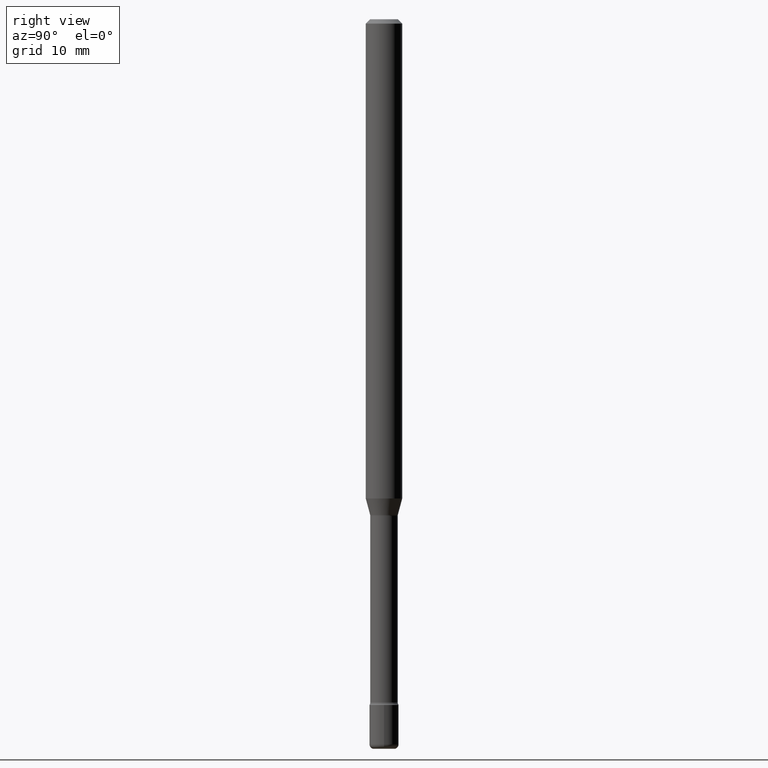
[diagram: clean part render]
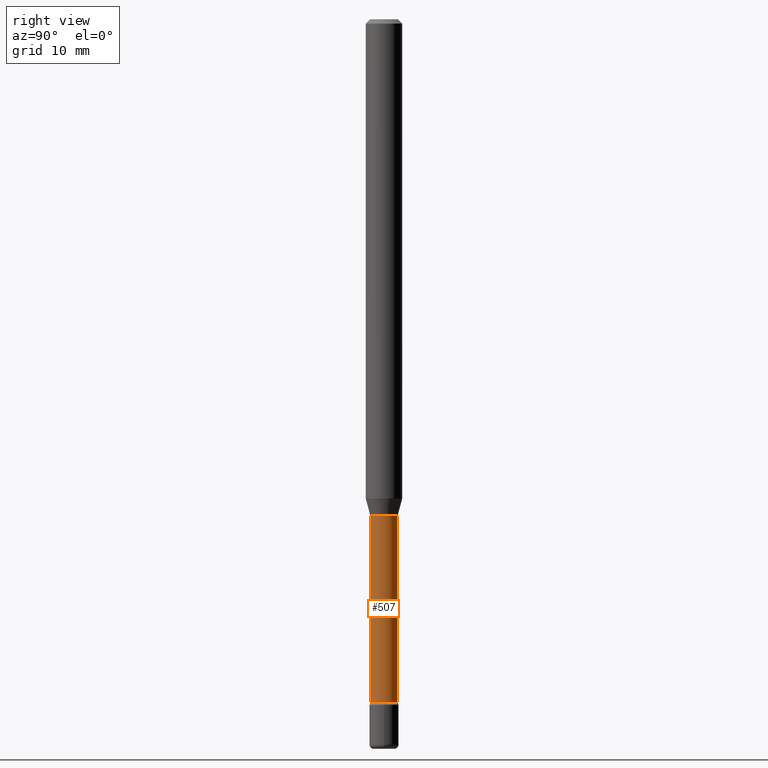
[diagram: same view with one face highlighted and labeled with its STEP entity id]
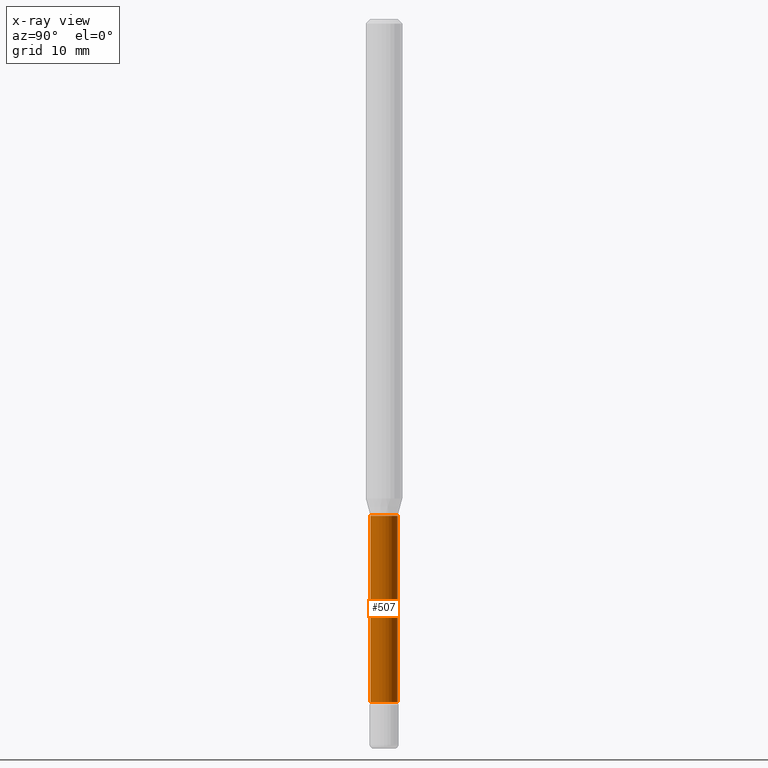
[diagram: x-ray of the same camera — body ghosted, the highlighted face saturated]
A machine part, right view. The second image highlights one B-rep face of the part: STEP entity #507.
The next image is the same camera in x-ray: the body ghosted, the highlighted face saturated — about 0% of this face is hidden behind the body in this view.
In plain terms, the highlighted cylindrical surface (edge-blend (fillet) strip) has radius 1.1938 mm, axis along (-0, 0, 1).
Its self-contained STEP definition (entity closure, byte-faithful):
#14 = ORIENTED_EDGE ( 'NONE', *, *, #350, .T. ) ;
#19 = VECTOR ( 'NONE', #181, 39.37007874015748143 ) ;
#20 = CARTESIAN_POINT ( 'NONE',  ( 3.446132268437060393E-16, 0.04699999999999183303, -2.341000000000000192 ) ) ;
#21 = CIRCLE ( 'NONE', #66, 0.04700000000000000705 ) ;
#33 = EDGE_CURVE ( 'NONE', #138, #429, #403, .T. ) ;
#36 = EDGE_CURVE ( 'NONE', #429, #304, #105, .T. ) ;
#41 = ORIENTED_EDGE ( 'NONE', *, *, #36, .F. ) ;
#53 = DIRECTION ( 'NONE',  ( -2.445541428082492260E-29, 3.491377340152750324E-15, 1.000000000000000000 ) ) ;
#65 = CARTESIAN_POINT ( 'NONE',  ( -1.169113584055446105E-44, 1.669184350826100908E-30, 4.780733988912460139E-16 ) ) ;
#66 = AXIS2_PLACEMENT_3D ( 'NONE', #194, #244, #456 ) ;
#105 = CIRCLE ( 'NONE', #316, 0.04700000000000000705 ) ;
#107 = CARTESIAN_POINT ( 'NONE',  ( -3.281992458511972621E-16, -0.04700000000000817413, -2.340999999999999748 ) ) ;
#124 = EDGE_LOOP ( 'NONE', ( #14, #162, #41, #469 ) ) ;
#138 = VERTEX_POINT ( 'NONE', #107 ) ;
#142 = EDGE_CURVE ( 'NONE', #336, #304, #412, .T. ) ;
#162 = ORIENTED_EDGE ( 'NONE', *, *, #142, .T. ) ;
#168 = AXIS2_PLACEMENT_3D ( 'NONE', #65, #520, #394 ) ;
#179 = CARTESIAN_POINT ( 'NONE',  ( 4.162249852294645006E-29, -5.942236206462443190E-15, -1.701974787463810923 ) ) ;
#181 = DIRECTION ( 'NONE',  ( -2.445541428082492260E-29, 3.491377340152750324E-15, 1.000000000000000000 ) ) ;
#194 = CARTESIAN_POINT ( 'NONE',  ( 5.725012483141114982E-29, -8.173314353297587961E-15, -2.341000000000000192 ) ) ;
#244 = DIRECTION ( 'NONE',  ( -2.445541428082492260E-29, 3.491377340152750324E-15, 1.000000000000000000 ) ) ;
#304 = VERTEX_POINT ( 'NONE', #475 ) ;
#316 = AXIS2_PLACEMENT_3D ( 'NONE', #179, #53, #570 ) ;
#322 = CARTESIAN_POINT ( 'NONE',  ( 3.339550858072470388E-16, 0.04700000000000000705, 3.139786639040668225E-16 ) ) ;
#336 = VERTEX_POINT ( 'NONE', #20 ) ;
#350 = EDGE_CURVE ( 'NONE', #138, #336, #21, .T. ) ;
#375 = DIRECTION ( 'NONE',  ( -2.445541428082492260E-29, 3.491377340152750324E-15, 1.000000000000000000 ) ) ;
#394 = DIRECTION ( 'NONE',  ( -6.982962677686265922E-15, -1.000000000000000000, 3.491377340152749929E-15 ) ) ;
#395 = CARTESIAN_POINT ( 'NONE',  ( -3.281992458512545531E-16, -0.04700000000000000705, 6.421681338784253533E-16 ) ) ;
#403 = LINE ( 'NONE', #395, #19 ) ;
#412 = LINE ( 'NONE', #322, #495 ) ;
#429 = VERTEX_POINT ( 'NONE', #510 ) ;
#456 = DIRECTION ( 'NONE',  ( -6.982962677686265922E-15, -1.000000000000000000, 5.812442539711197800E-15 ) ) ;
#469 = ORIENTED_EDGE ( 'NONE', *, *, #33, .F. ) ;
#475 = CARTESIAN_POINT ( 'NONE',  ( 3.339550858073043792E-16, 0.04699999999999406042, -1.701974787463811145 ) ) ;
#495 = VECTOR ( 'NONE', #375, 39.37007874015748143 ) ;
#507 = ADVANCED_FACE ( 'NONE', ( #551 ), #508, .T. ) ;
#508 = CYLINDRICAL_SURFACE ( 'NONE', #168, 0.04700000000000000705 ) ;
#510 = CARTESIAN_POINT ( 'NONE',  ( -3.281992458512129407E-16, -0.04700000000000594674, -1.701974787463810701 ) ) ;
#520 = DIRECTION ( 'NONE',  ( -2.445541428082492260E-29, 3.491377340152750324E-15, 1.000000000000000000 ) ) ;
#551 = FACE_OUTER_BOUND ( 'NONE', #124, .T. ) ;
#570 = DIRECTION ( 'NONE',  ( -6.982962677686265922E-15, -1.000000000000000000, 5.812442539711197800E-15 ) ) ;